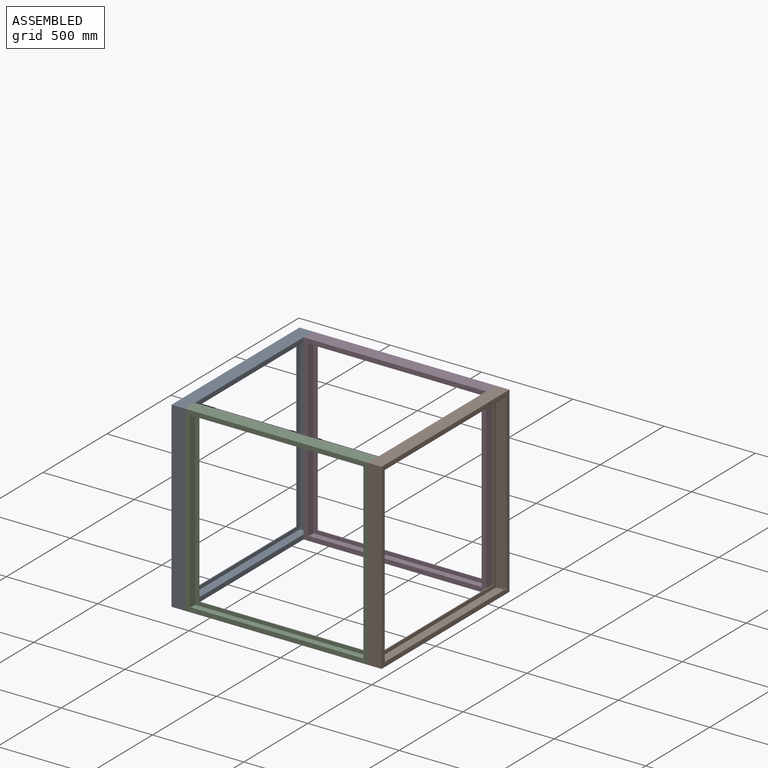
[diagram: assembled view]
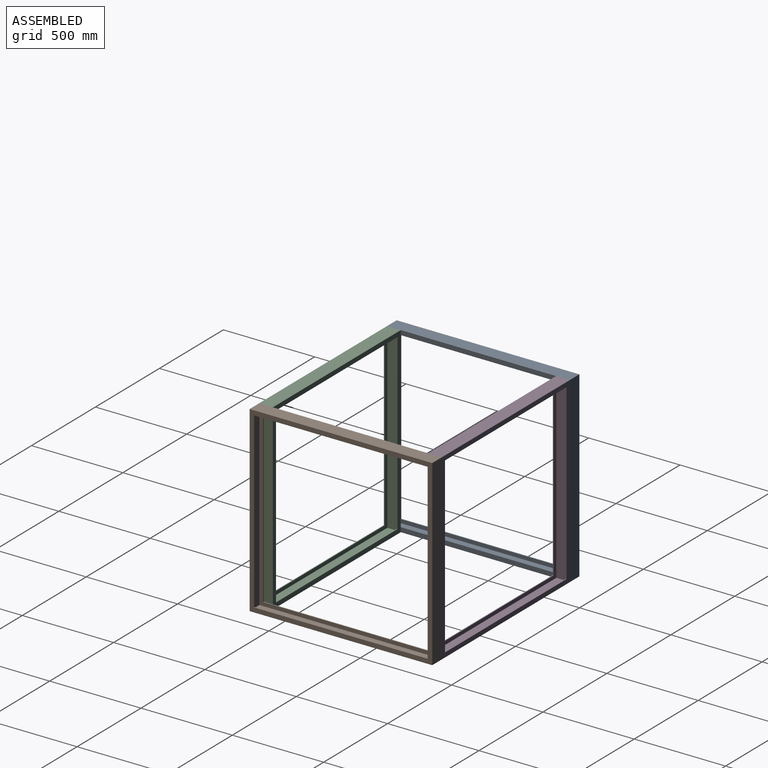
[diagram: assembled view, second angle]
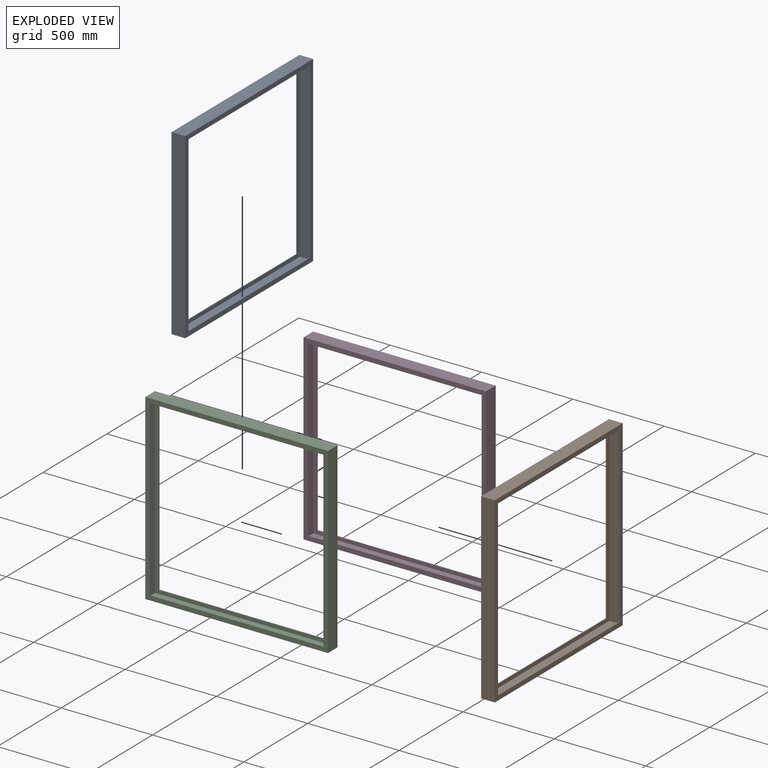
[diagram: exploded view]
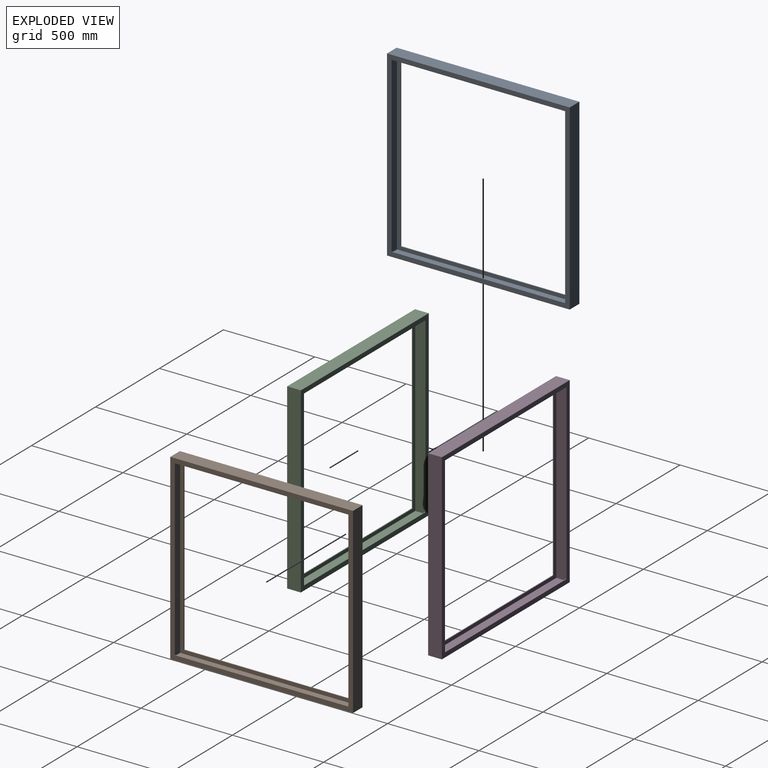
[diagram: exploded view, second angle]
ASSEMBLY  parts=4 mates=3
PART A: 20 faces, bbox 75x1000x1000 mm
  f0: plane 990x990mm, normal (-1,0,0), area 77600mm2, adj f1,f7,f8,f11,f12,f15,f16,f19
  f1: plane 990x65mm, normal (0,0,1), area 64350mm2, adj f0,f2,f8,f12
  f2: plane 990x990mm, normal (1,0,0), area 77600mm2, adj f1,f3,f8,f9,f12,f13,f16,f17
  f3: plane 950x5mm, normal (0,0,1), area 4750mm2, adj f2,f4,f9,f13
  f4: plane 1000x1000mm, normal (-1,0,0), area 97500mm2, adj f3,f5,f9,f10,f13,f14,f17,f18
  f5: plane 1000x75mm, normal (0,0,-1), area 75000mm2, adj f4,f6,f10,f14
  f6: plane 1000x1000mm, normal (1,0,0), area 97500mm2, adj f5,f7,f10,f11,f14,f15,f18,f19
  f7: plane 950x5mm, normal (0,0,1), area 4750mm2, adj f0,f6,f11,f15
  f8: plane 990x65mm, normal (0,1,0), area 64350mm2, adj f0,f1,f2,f16
  f9: plane 950x5mm, normal (0,1,0), area 4750mm2, adj f2,f3,f4,f17
  f10: plane 1000x75mm, normal (0,-1,0), area 75000mm2, adj f4,f5,f6,f18
  f11: plane 950x5mm, normal (0,1,0), area 4750mm2, adj f0,f6,f7,f19
  f12: plane 990x65mm, normal (0,-1,0), area 64350mm2, adj f0,f1,f2,f16
  f13: plane 950x5mm, normal (0,-1,0), area 4750mm2, adj f2,f3,f4,f17
  f14: plane 1000x75mm, normal (0,1,0), area 75000mm2, adj f4,f5,f6,f18
  f15: plane 950x5mm, normal (0,-1,0), area 4750mm2, adj f0,f6,f7,f19
  f16: plane 990x65mm, normal (0,0,-1), area 64350mm2, adj f0,f2,f8,f12
  f17: plane 950x5mm, normal (0,0,-1), area 4750mm2, adj f2,f4,f9,f13
  f18: plane 1000x75mm, normal (0,0,1), area 75000mm2, adj f4,f6,f10,f14
  f19: plane 950x5mm, normal (0,0,-1), area 4750mm2, adj f0,f6,f11,f15
PART B: same geometry as A
PART C: same geometry as A
PART D: same geometry as A
PLACE A rot(axis=(1,0,0),180deg) t=(-63.92,-1045.39,-114.6)mm fixed
PLACE B rot(axis=(0,1,0),180deg) t=(1086.08,-1045.39,-114.6)mm
PLACE C rot(axis=(0.71,0.71,0),180deg) t=(511.08,-1545.39,-114.6)mm fixed
PLACE D rot(axis=(0.71,0.71,0),180deg) t=(511.08,-620.39,-114.6)mm fixed
MATE planar D.f5 <-> A.f5  axis (0,0,1) through (11.08,-545.39,-114.6)mm
MATE fastened B.f5 <-> D.f5  axis (0,0,-1) through (1011.08,-545.39,-114.6)mm
MATE fastened C.f5 <-> A.f5  axis (0,0,1) through (11.08,-1545.39,-114.6)mm
